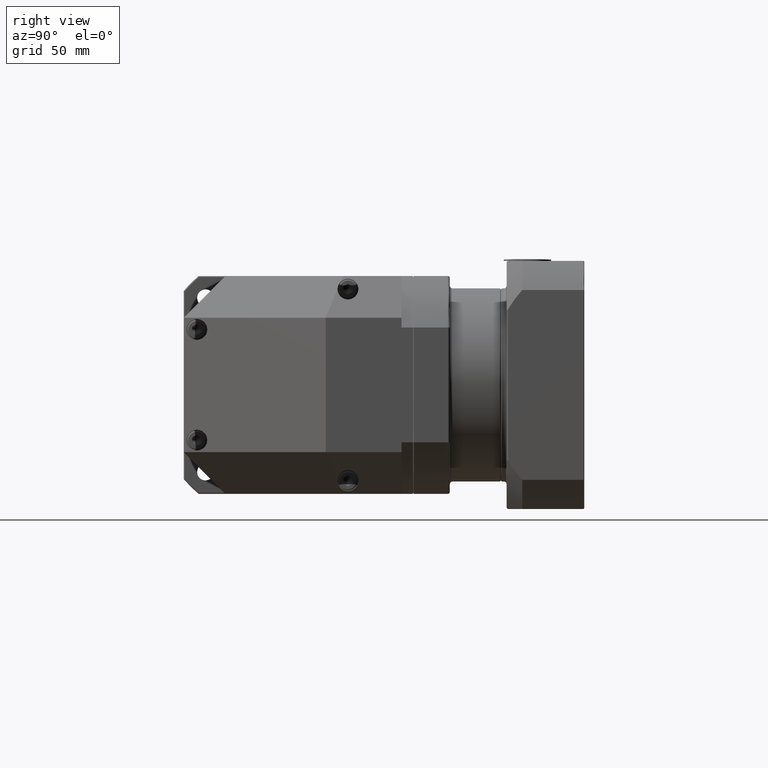
[diagram: clean part render]
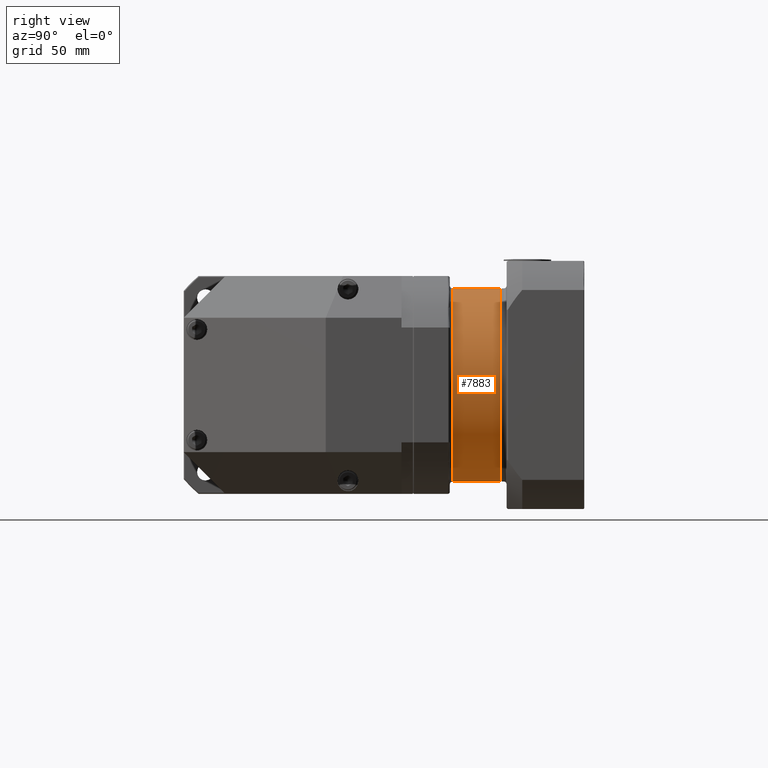
[diagram: same view with one face highlighted and labeled with its STEP entity id]
A machine part, right view. The second image highlights one B-rep face of the part: STEP entity #7883.
In plain terms, the highlighted cylindrical surface (bore or boss wall) has radius 51 mm, axis along (0, 1, 0).
Its self-contained STEP definition (entity closure, byte-faithful):
#1879=FACE_BOUND('',#3049,.T.);
#2340=FACE_OUTER_BOUND('',#3048,.T.);
#3048=EDGE_LOOP('',(#6774));
#3049=EDGE_LOOP('',(#6775));
#3587=CIRCLE('',#8736,51.);
#3597=CIRCLE('',#8748,51.);
#4227=VERTEX_POINT('',#13482);
#4241=VERTEX_POINT('',#13512);
#5122=EDGE_CURVE('',#4227,#4227,#3587,.T.);
#5136=EDGE_CURVE('',#4241,#4241,#3597,.T.);
#6774=ORIENTED_EDGE('',*,*,#5136,.F.);
#6775=ORIENTED_EDGE('',*,*,#5122,.F.);
#7460=CYLINDRICAL_SURFACE('',#8747,51.);
#7883=ADVANCED_FACE('',(#2340,#1879),#7460,.T.);
#8736=AXIS2_PLACEMENT_3D('',#13483,#10651,#10652);
#8747=AXIS2_PLACEMENT_3D('',#13511,#10677,#10678);
#8748=AXIS2_PLACEMENT_3D('',#13513,#10679,#10680);
#10651=DIRECTION('center_axis',(-6.41610409092978E-16,-1.,-4.35262012587568E-15));
#10652=DIRECTION('ref_axis',(7.62899366889019E-15,-4.35262012587569E-15,
1.));
#10677=DIRECTION('center_axis',(6.41610409092978E-16,1.,4.35262012587568E-15));
#10678=DIRECTION('ref_axis',(7.62899366889019E-15,-4.35262012587569E-15,
1.));
#10679=DIRECTION('center_axis',(6.41610409092978E-16,1.,4.35262012587568E-15));
#10680=DIRECTION('ref_axis',(7.62899366889019E-15,-4.35262012587569E-15,
1.));
#13482=CARTESIAN_POINT('',(161.198546431623,54.956835803238,-3.38427888357835));
#13483=CARTESIAN_POINT('Origin',(161.198546431623,54.9568358032378,47.6157211164217));
#13511=CARTESIAN_POINT('Origin',(161.198546431623,53.4568358032378,47.6157211164217));
#13512=CARTESIAN_POINT('',(161.198546431623,79.956835803238,-3.38427888357823));
#13513=CARTESIAN_POINT('Origin',(161.198546431623,79.9568358032378,47.6157211164218));